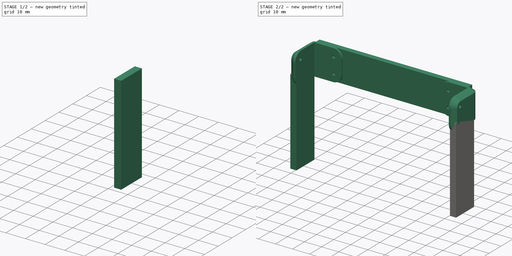
[diagram: build sequence overview — one tinted view per stage of 2, left to right]
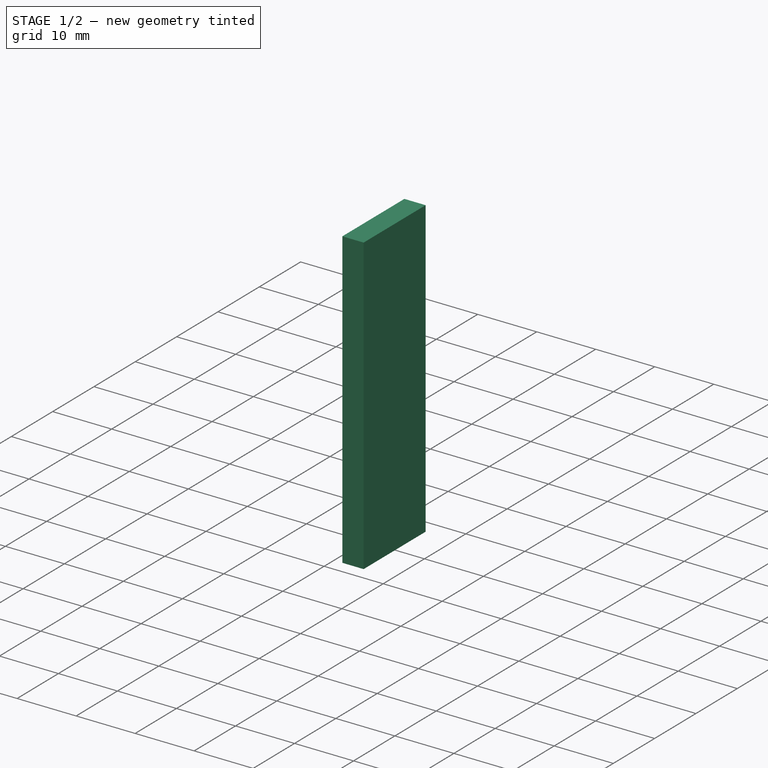
[diagram: stage 1 of 2 — iso view after this stage's code; geometry added in this stage tinted green]
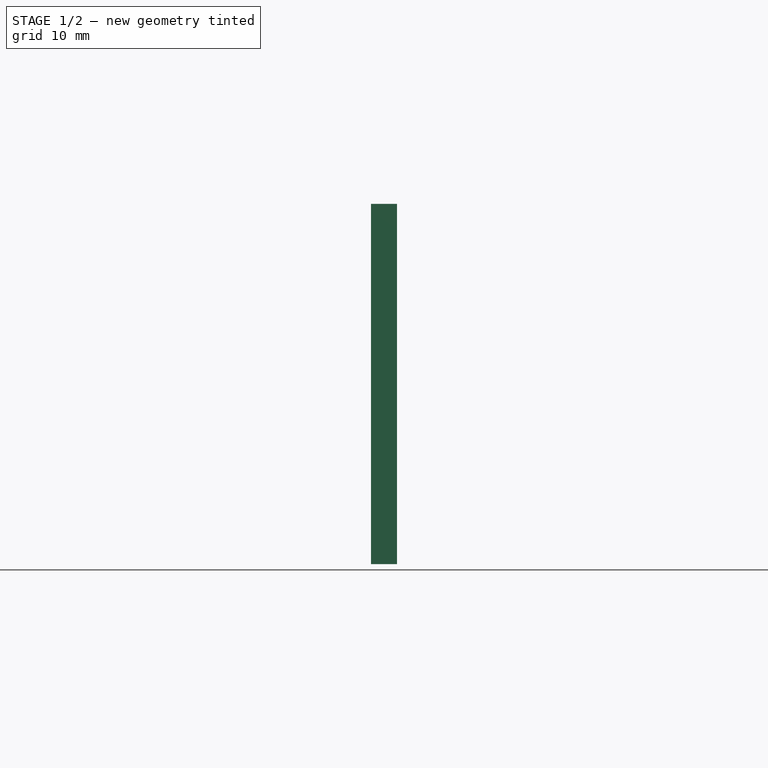
[diagram: stage 1 of 2 — front view after this stage's code; geometry added in this stage tinted green]
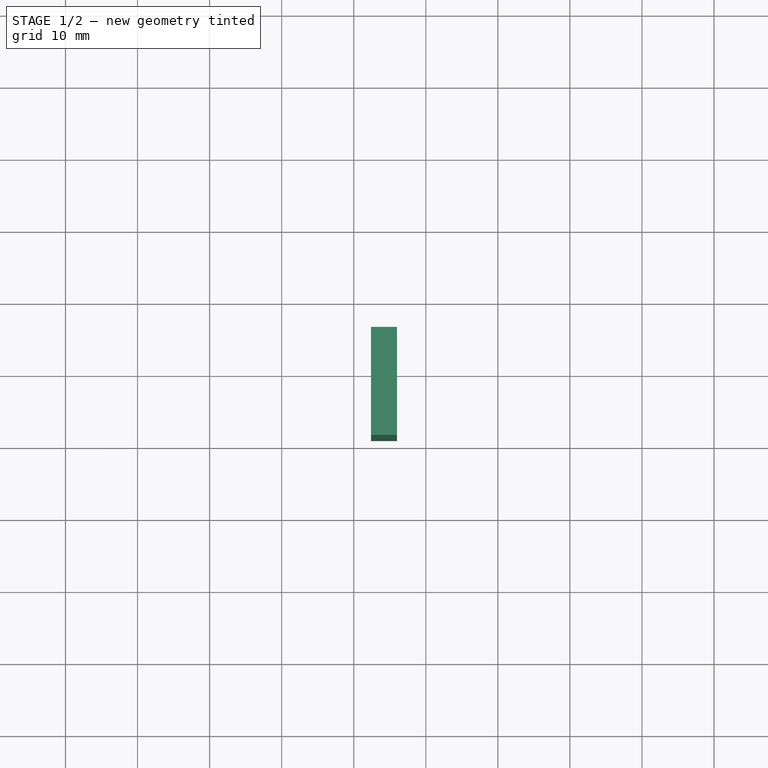
[diagram: stage 1 of 2 — top view after this stage's code; geometry added in this stage tinted green]
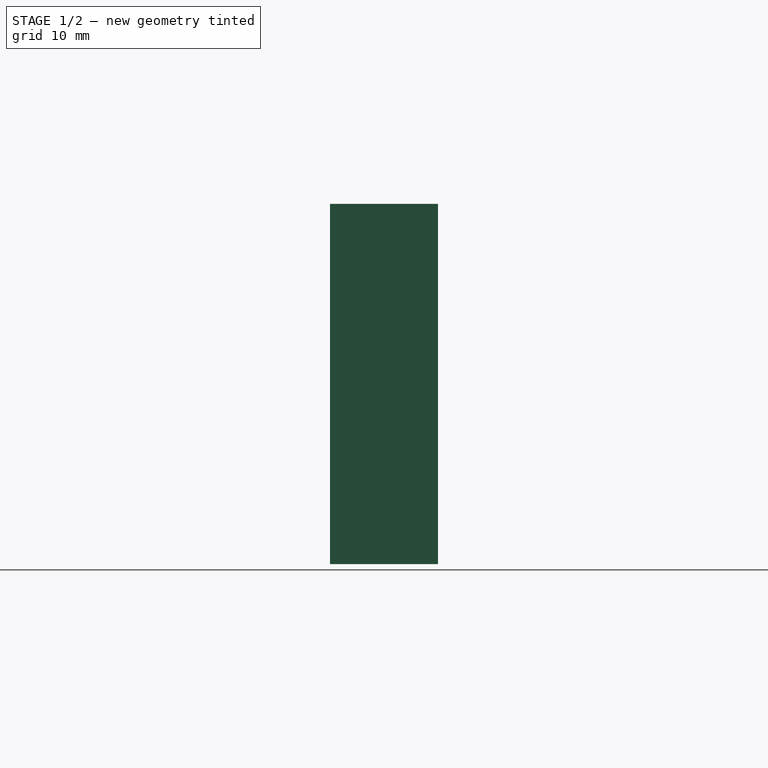
[diagram: stage 1 of 2 — right view after this stage's code; geometry added in this stage tinted green]
FCSTD DOCUMENT  (FreeCAD 0.19R24267 +148 (Git))
Label: Angle-Small
License: All rights reserved
LicenseURL: http://en.wikipedia.org/wiki/All_rights_reserved
objects: Part::FeaturePython×3, PartDesign::FeatureBase×3, PartDesign::Body×3, Part::Compound×2, Sketcher::SketchObject×1, Part::Extrusion×1, Part::Box×1, App::DocumentObjectGroup×1, PartDesign::Plane×1
note: 15 computed .brp shape members not serialized (recipe doc carries the construction recipe); baked Part::Feature solids carry a one-line shape summary decoded from their .brp

FEATURE [Part::FeaturePython] Clone  label="Top_angle001 (Solid)001"  # WARN: FeaturePython — macro-defined, semantics opaque (R4)
  AttacherType = Attacher::AttachEngine3D
  Fuse = false
  Placement = pos=(-38,0,0) rot=(0,0,1;0rad)
  Scale = (0.6,0.6,0.6)
FEATURE [PartDesign::FeatureBase] BaseFeature
  BaseFeature = -> Clone
FEATURE [PartDesign::Body] Body
  BaseFeature = -> Clone
  Group = -> [BaseFeature]
  Origin = -> Origin
  Placement = pos=(-61,0,0) rot=(0,0,1;0rad)
  Tip = -> BaseFeature
FEATURE [Part::FeaturePython] Clone001  label="Body001"  # Draft clone (typed FeaturePython)
  AttacherType = Attacher::AttachEngine3D
  Fuse = false
  Objects = -> [Body]
  Placement = pos=(-139.038,-1219.18,0) rot=(0,0,-1;0.008576rad)
  Scale = (1,1,1)
FEATURE [PartDesign::FeatureBase] BaseFeature001
  BaseFeature = -> Clone001
FEATURE [Sketcher::SketchObject] Sketch001
  FullyConstrained = false
  MapMode = 5
  Placement = pos=(0,0,0) rot=(1,0,0;1.5708rad)
  Support = -> [XZ_Plane001]
  sketch-geometry (4):
    g0: LineSegment StartX=3.77713 StartY=18.0087 StartZ=0 EndX=93.1174 EndY=18.0087 EndZ=0
    g1: LineSegment StartX=93.1174 StartY=18.0087 StartZ=0 EndX=93.1174 EndY=-0.076532 EndZ=0
    g2: LineSegment StartX=93.1174 StartY=-0.076532 StartZ=0 EndX=3.77713 EndY=-0.076532 EndZ=0
    g3: LineSegment StartX=3.77713 StartY=-0.076532 StartZ=0 EndX=3.77713 EndY=18.0087 EndZ=0
  constraints (8):
    c: Coincident(g0,g1)
    c: Coincident(g1,g2)
    c: Coincident(g2,g3)
    c: Coincident(g3,g0)
    c: Horizontal(g0)
    c: Horizontal(g2)
    c: Vertical(g1)
    c: Vertical(g3)
FEATURE [Part::Extrusion] Extrude
  Base = -> Sketch001
  Dir = (0,1,0)
  DirMode = 0
  FaceMakerClass = Part::FaceMakerBullseye
  LengthFwd = 3
  LengthRev = 0
  Placement = pos=(-61,17,0) rot=(0,0,1;0rad)
  Solid = true
  Symmetric = false
FEATURE [Part::Box] Box  label="Cube"
  AttacherType = Attacher::AttachEngine3D
  Height = 50
  Length = 3.6
  Placement = pos=(32.4,1,-44) rot=(0,0,1;0rad)
  Width = 15
FEATURE [Part::FeaturePython] Clone002  label="Cube001"  # Draft clone (typed FeaturePython)
  AttacherType = Attacher::AttachEngine3D
  Fuse = false
  Objects = -> [Box]
  Placement = pos=(32.4,1,-44) rot=(0,0,1;0rad)
  Scale = (1,1,1)
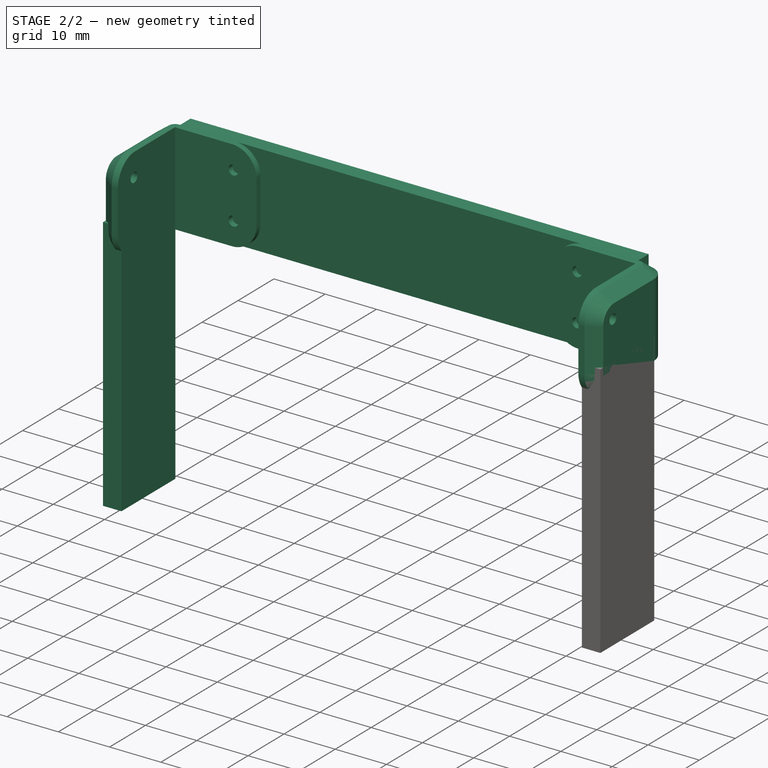
[diagram: stage 2 of 2 — iso view after this stage's code; geometry added in this stage tinted green]
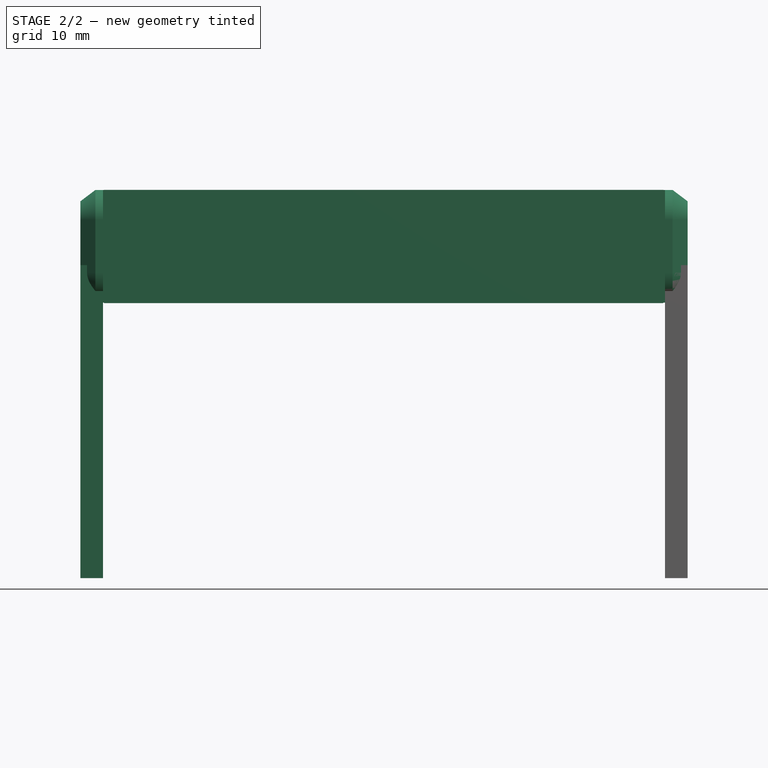
[diagram: stage 2 of 2 — front view after this stage's code; geometry added in this stage tinted green]
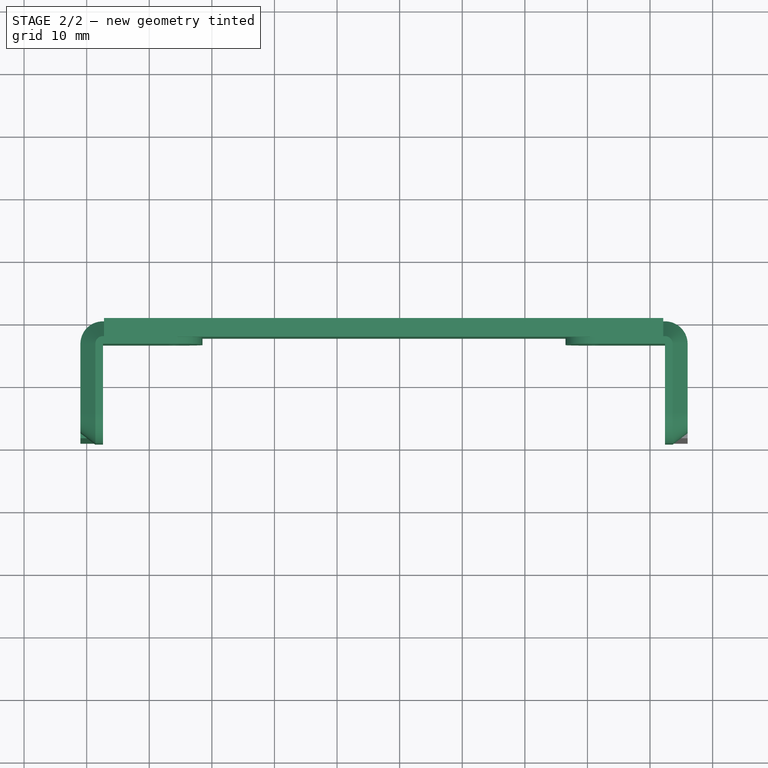
[diagram: stage 2 of 2 — top view after this stage's code; geometry added in this stage tinted green]
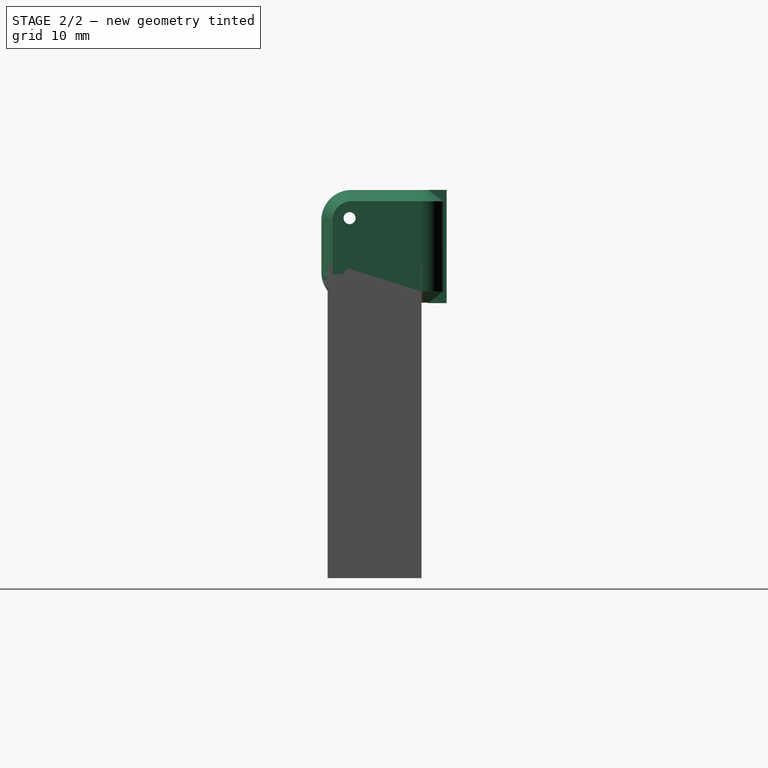
[diagram: stage 2 of 2 — right view after this stage's code; geometry added in this stage tinted green]
FEATURE [App::DocumentObjectGroup] Draft_Construction  label="Construction"
  Group = -> [Clone002]
FEATURE [PartDesign::FeatureBase] BaseFeature002
  BaseFeature = -> Clone002
FEATURE [PartDesign::Body] Body002  label="Body003"
  BaseFeature = -> Clone002
  Group = -> [BaseFeature002]
  Origin = -> Origin002
  Placement = pos=(-61,1,-44) rot=(0,0,1;0rad)
  Tip = -> BaseFeature002
FEATURE [PartDesign::Body] Body001  label="Body002"
  BaseFeature = -> Clone001
  Group = -> [BaseFeature001,Sketch001,DatumPlane]
  Origin = -> Origin001
  Placement = pos=(36,1.4e-14,18) rot=(0,-1,0;3.14159rad)
  Tip = -> BaseFeature001
FEATURE [Part::Compound] Compound
  Links = -> [Body,Body001,Extrude]
FEATURE [PartDesign::Plane] DatumPlane
  Length = 60
  MapMode = 5
  Placement = pos=(-57.4,0,0) rot=(0.57735,0.57735,0.57735;2.0944rad)
  ResizeMode = 0
  Support = -> [Compound]
  Width = 60
FEATURE [Part::Compound] Compound001
  Links = -> [Body002,Box,Compound]
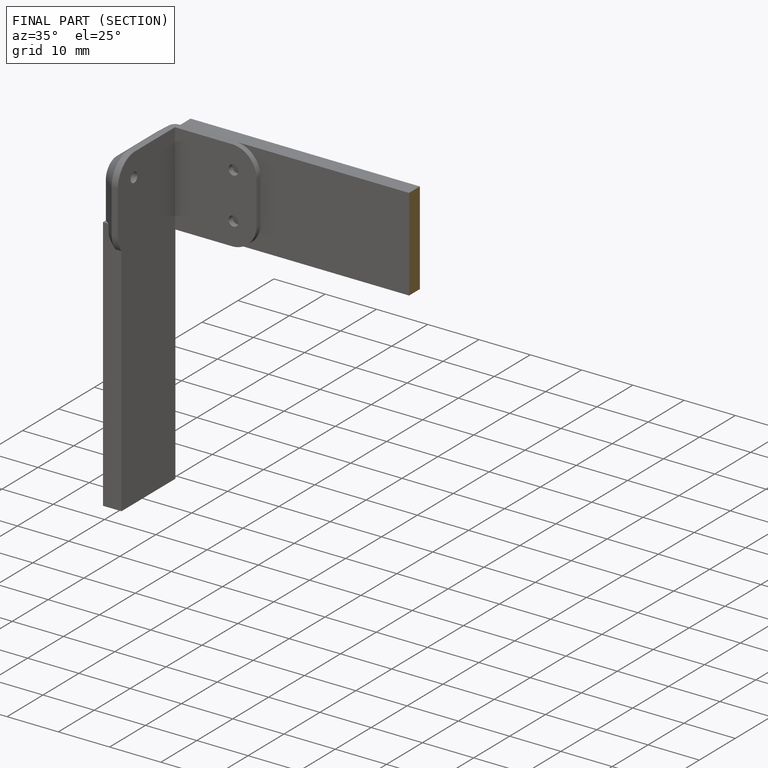
[diagram: finished part — half-section view (interior)]
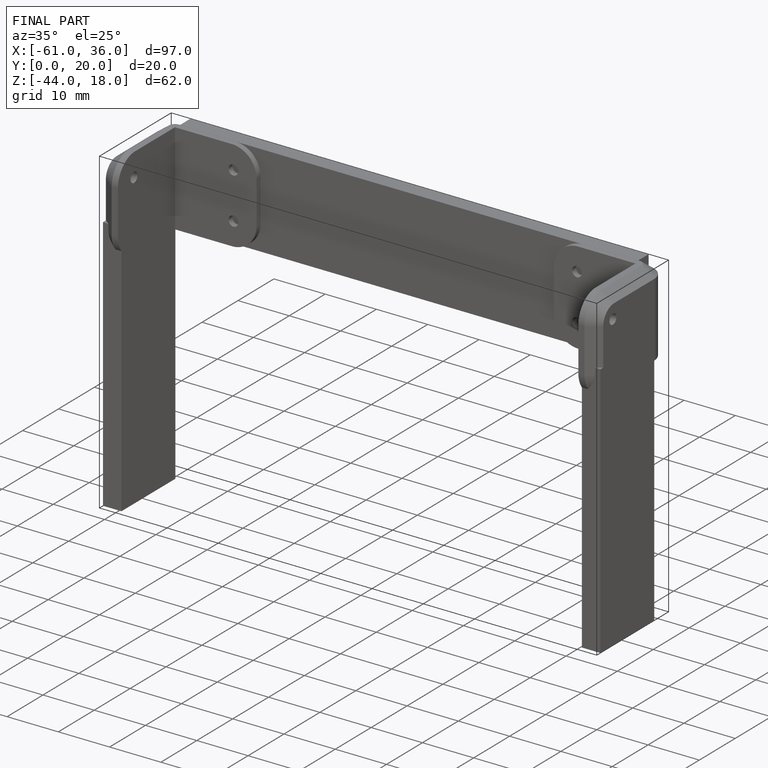
[diagram: finished part — iso view with bounding-box wireframe]
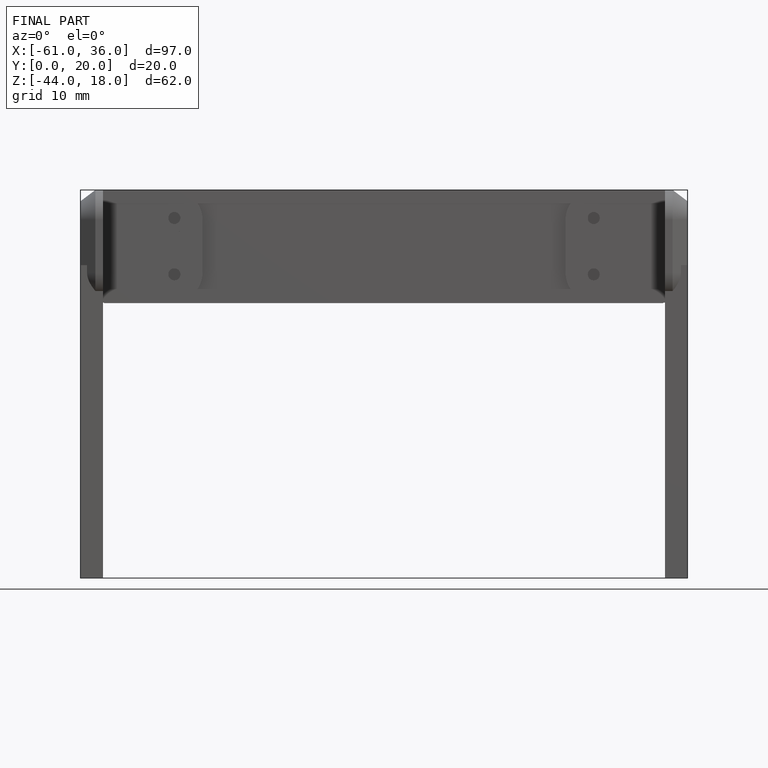
[diagram: finished part — front view with bounding-box wireframe]
